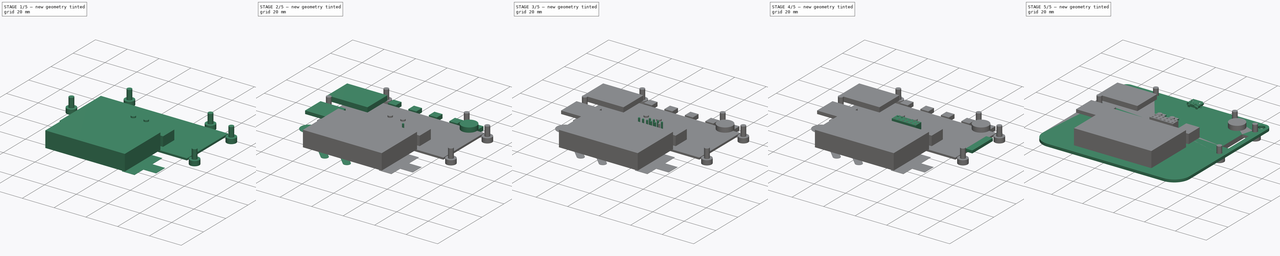
[diagram: build sequence overview — one tinted view per stage of 5, left to right]
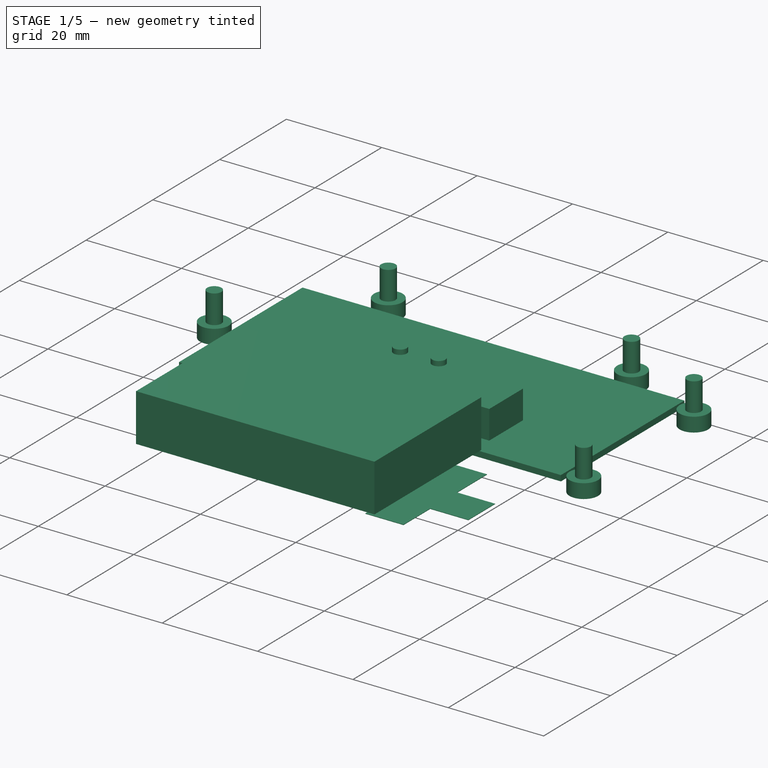
[diagram: stage 1 of 5 — iso view after this stage's code; geometry added in this stage tinted green]
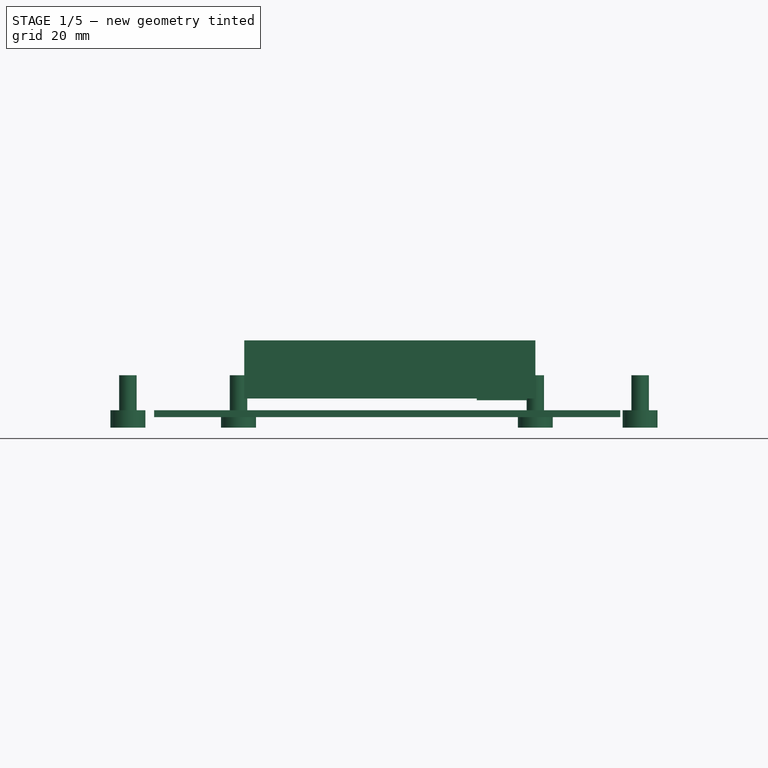
[diagram: stage 1 of 5 — front view after this stage's code; geometry added in this stage tinted green]
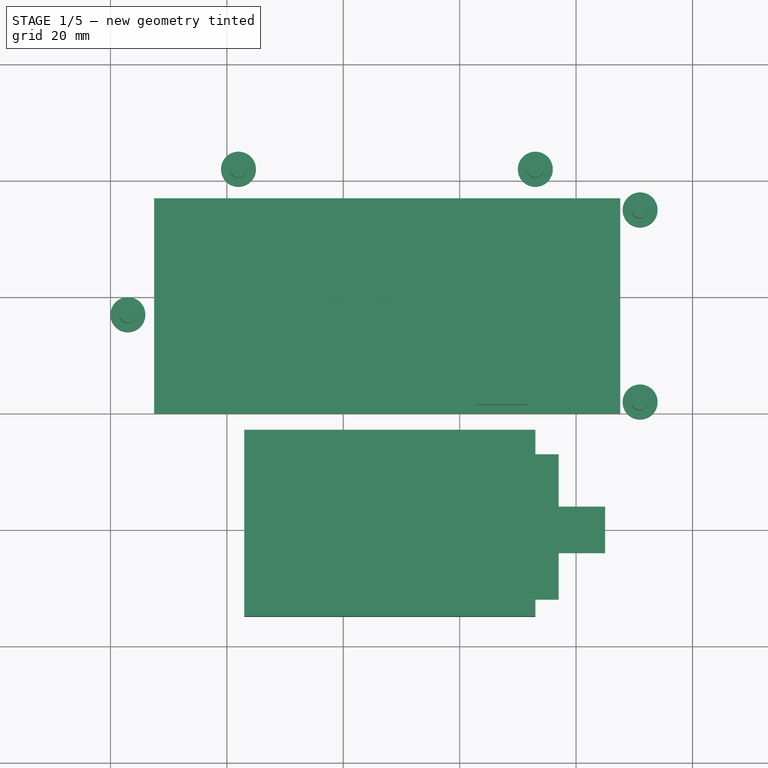
[diagram: stage 1 of 5 — top view after this stage's code; geometry added in this stage tinted green]
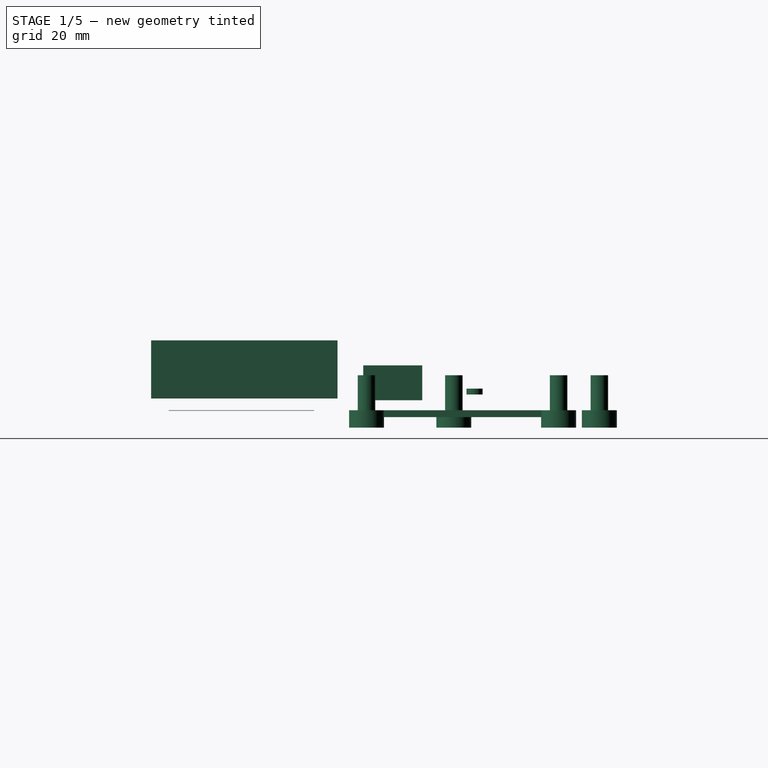
[diagram: stage 1 of 5 — right view after this stage's code; geometry added in this stage tinted green]
FCSTD DOCUMENT  (FreeCAD 0.16R6710 (Git))
Label: badgeModel
License: All rights reserved
LicenseURL: http://en.wikipedia.org/wiki/All_rights_reserved
objects: Part::Extrusion×37, Part::Feature×32, Sketcher::SketchObject×8, Part::MultiFuse×4, Part::Cut×2, Part::Compound×2, Part::FeaturePython×1, Part::Box×1
note: 87 computed .brp shape members not serialized (recipe doc carries the construction recipe); baked Part::Feature solids carry a one-line shape summary decoded from their .brp

FEATURE [Sketcher::SketchObject] Sketch004
  sketch-geometry (13):
    g0: LineSegment StartX=77 StartY=24 StartZ=0 EndX=85 EndY=24 EndZ=0
    g1: LineSegment StartX=85 StartY=24 StartZ=0 EndX=85 EndY=16 EndZ=0
    g2: LineSegment StartX=85 StartY=16 StartZ=0 EndX=77 EndY=16 EndZ=0
    g3: LineSegment StartX=77 StartY=16 StartZ=0 EndX=77 EndY=8 EndZ=0
    g4: LineSegment StartX=77 StartY=8 StartZ=0 EndX=69 EndY=8 EndZ=0
    g5: LineSegment StartX=69 StartY=8 StartZ=0 EndX=69 EndY=16 EndZ=0
    g6: LineSegment StartX=69 StartY=16 StartZ=0 EndX=61 EndY=16 EndZ=0
    g7: LineSegment StartX=61 StartY=16 StartZ=0 EndX=61 EndY=24 EndZ=0
    g8: LineSegment StartX=61 StartY=24 StartZ=0 EndX=69 EndY=24 EndZ=0
    g9: LineSegment StartX=69 StartY=24 StartZ=0 EndX=69 EndY=33 EndZ=0
    g10: LineSegment StartX=69 StartY=33 StartZ=0 EndX=77 EndY=33 EndZ=0
    g11: LineSegment StartX=77 StartY=33 StartZ=0 EndX=77 EndY=24.1 EndZ=0
    g12: LineSegment StartX=77 StartY=24 StartZ=0 EndX=77 EndY=24.1 EndZ=0
  constraints (4):
    c: DistanceX(g0) = 77
    c: DistanceY(g0) = 24
    c: Coincident(g0,g12)
    c: Coincident(g11,g12)
FEATURE [Part::Extrusion] Extrude_Sketch004  label="dpad001"
  Base = -> Sketch004
  Dir = (0,0,-0.1)
  Solid = true
FEATURE [Part::Extrusion] Extrude_Wire002  label="batConOutline_Extrude"
  Base = -> Wire002
  Dir = (0,0,6)
  Solid = true
FEATURE [Part::Extrusion] Extrude_Wire005  label="lcd_Extrude"
  Base = -> Wire005
  Dir = (0,0,-1.2)
  Solid = true
FEATURE [Part::Extrusion] Extrude_Sketch  label="Buttons_Extrude"
  Base = -> Sketch
  Dir = (0,0,1)
  Solid = true
FEATURE [Sketcher::SketchObject] Sketch005
  ExternalGeometry = -> [Extrude_Sketch]
  Placement = pos=(0,0,2.7) rot=(0,0,1;0rad)
  Support = -> Extrude_Sketch [Face6]
  sketch-geometry (7):
    g0: Circle CenterX=39.4787 CenterY=60.5688 CenterZ=0 NormalX=0 NormalY=0 NormalZ=1 Radius=1.38631
    g1: Circle CenterX=47.5742 CenterY=60.5688 CenterZ=0 NormalX=0 NormalY=0 NormalZ=1 Radius=1.38631
    g2: LineSegment [constr] StartX=42.0765 StartY=63.1395 StartZ=0 EndX=39.4787 EndY=60.5688 EndZ=0
    g3: LineSegment [constr] StartX=39.4787 StartY=60.5688 StartZ=0 EndX=36.8809 EndY=57.9981 EndZ=0
    g4: LineSegment [constr] StartX=39.4787 StartY=60.5688 StartZ=0 EndX=36.8809 EndY=63.1395 EndZ=0
    g5: LineSegment [constr] StartX=44.9764 StartY=63.1395 StartZ=0 EndX=47.5742 EndY=60.5688 EndZ=0
    g6: LineSegment [constr] StartX=47.5742 StartY=60.5688 StartZ=0 EndX=50.172 EndY=63.1395 EndZ=0
  constraints (15):
    c: Coincident(g2,g-4)
    c: Coincident(g3,g0)
    c: Coincident(g3,g-5)
    c: Coincident(g4,g0)
    c: Coincident(g4,g-4)
    c: Coincident(g5,g-3)
    c: Coincident(g5,g1)
    c: Coincident(g6,g1)
    c: Coincident(g6,g-3)
    c: Equal(g6,g5)
    c: Equal(g5,g2)
    c: Equal(g2,g4)
    c: Equal(g4,g3)
    c: Coincident(g0,g2)
    c: Equal(g0,g1)
FEATURE [Part::Extrusion] Extrude_Sketch005  label="Sketch005_Extrude"
  Base = -> Sketch005
  Dir = (0,0,1)
  Solid = true
FEATURE [Part::Box] Box  label="Battery"
  Height = 10
  Length = 50
  Placement = pos=(23,5,2) rot=(0,0,1;0rad)
  Width = 32
FEATURE [Sketcher::SketchObject] Sketch010
  Placement = pos=(0,0,0) rot=(1,0,0;3.14159rad)
  sketch-geometry (5):
    g0: Circle CenterX=3 CenterY=-57 CenterZ=0 NormalX=0 NormalY=0 NormalZ=1 Radius=3
    g1: Circle CenterX=91 CenterY=-42 CenterZ=0 NormalX=0 NormalY=0 NormalZ=1 Radius=3
    g2: Circle CenterX=91 CenterY=-75 CenterZ=0 NormalX=0 NormalY=0 NormalZ=1 Radius=3
    g3: Circle CenterX=73 CenterY=-82 CenterZ=0 NormalX=0 NormalY=0 NormalZ=1 Radius=3
    g4: Circle CenterX=22 CenterY=-82 CenterZ=0 NormalX=0 NormalY=0 NormalZ=1 Radius=3
  constraints (2):
    c: Radius(g4) = 3
    c: Equal(g4, g0-g3) x4
FEATURE [Part::Extrusion] Extrude_Sketch010  label="Sketch010_Extrude"
  Base = -> Sketch010
  Dir = (0,0,-3)
  Solid = true
FEATURE [Sketcher::SketchObject] Sketch011
  ExternalGeometry = -> [Extrude_Sketch010]
  Support = -> Extrude_Sketch010 [Face2]
  sketch-geometry (5):
    g0: Circle CenterX=3 CenterY=57 CenterZ=0 NormalX=0 NormalY=0 NormalZ=1 Radius=1.5
    g1: Circle CenterX=22 CenterY=82 CenterZ=0 NormalX=0 NormalY=0 NormalZ=1 Radius=1.5
    g2: Circle CenterX=73 CenterY=82 CenterZ=0 NormalX=0 NormalY=0 NormalZ=1 Radius=1.5
    g3: Circle CenterX=91 CenterY=75 CenterZ=0 NormalX=0 NormalY=0 NormalZ=1 Radius=1.5
    g4: Circle CenterX=91 CenterY=42 CenterZ=0 NormalX=0 NormalY=0 NormalZ=1 Radius=1.5
  constraints (7):
    c: Coincident(g0,g-4)
    c: Coincident(g1,g-3)
    c: Coincident(g2,g-5)
    c: Coincident(g3,g-6)
    c: Coincident(g4,g-7)
    c: Radius(g0) = 1.5
    c: Equal(g0, g1-g4) x4
FEATURE [Part::Extrusion] Extrude_Sketch011  label="Sketch011_Extrude"
  Base = -> Sketch011
  Dir = (0,0,6)
  Solid = true
FEATURE [Part::MultiFuse] Fusion001003  label="M3-6mmScrews"
  Shapes = -> [Extrude_Sketch010,Extrude_Sketch011]
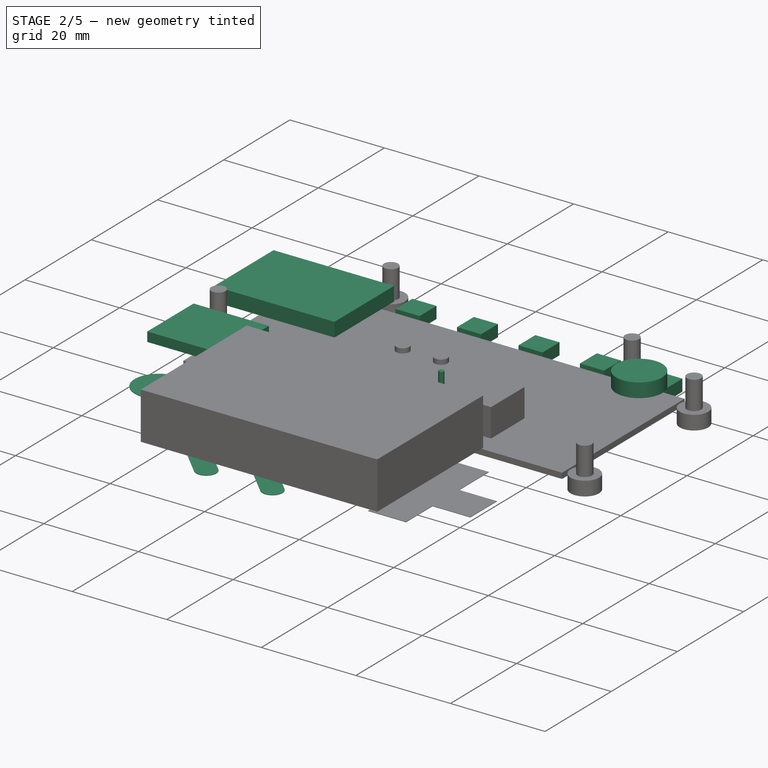
[diagram: stage 2 of 5 — iso view after this stage's code; geometry added in this stage tinted green]
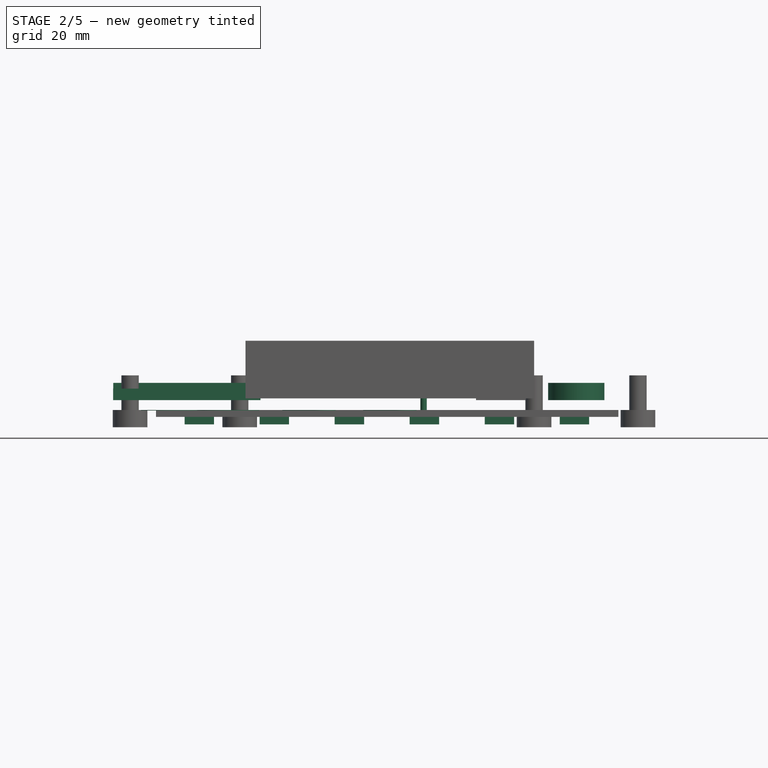
[diagram: stage 2 of 5 — front view after this stage's code; geometry added in this stage tinted green]
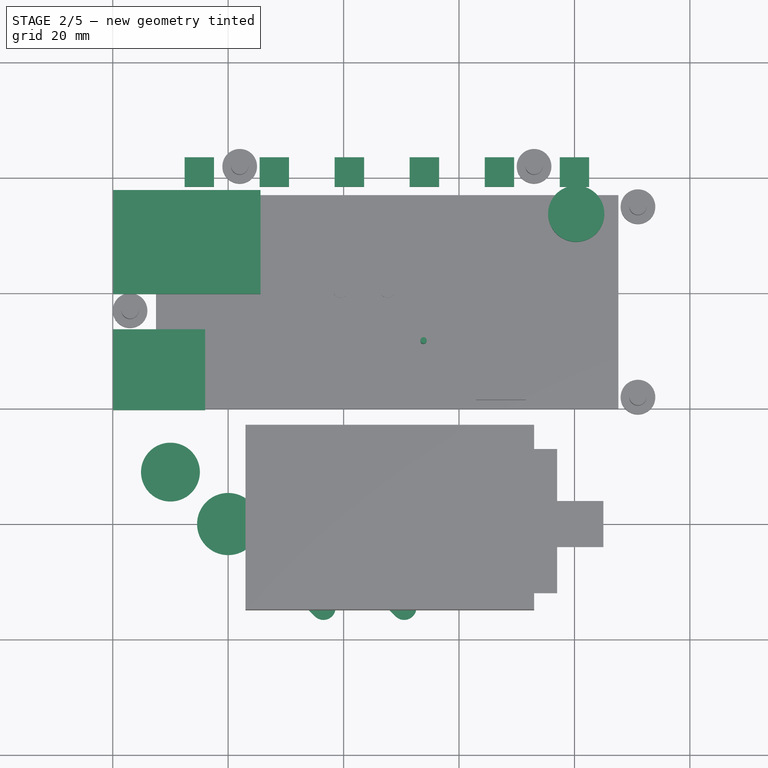
[diagram: stage 2 of 5 — top view after this stage's code; geometry added in this stage tinted green]
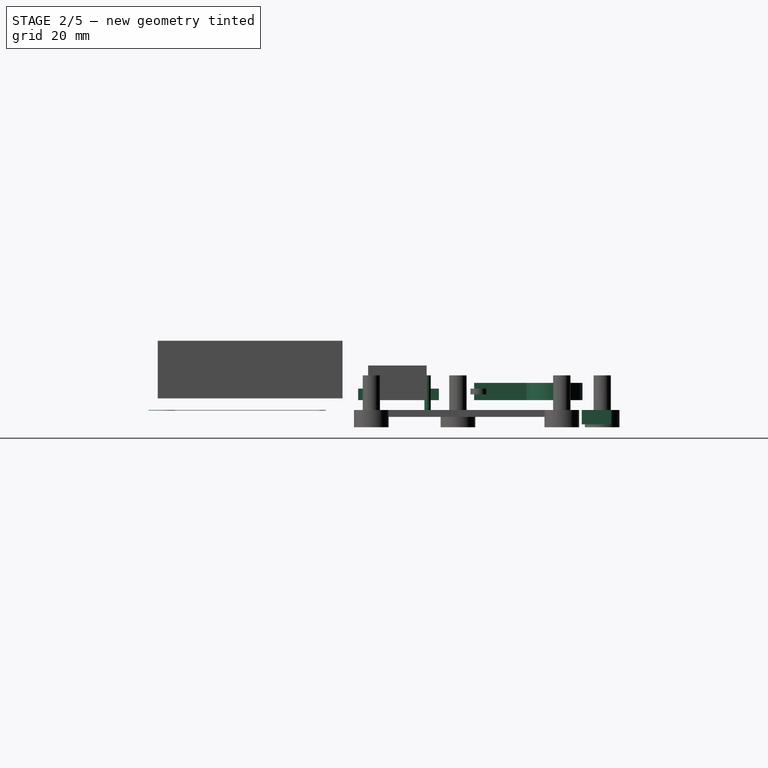
[diagram: stage 2 of 5 — right view after this stage's code; geometry added in this stage tinted green]
FEATURE [Part::Extrusion] Extrude_Circle018  label="Circle018_Extrude"
  Base = -> Circle018
  Dir = (0,0,6)
  Solid = true
FEATURE [Part::Extrusion] Extrude_Sketch002  label="sdouline_Extrude"
  Base = -> Sketch002
  Dir = (0,0,2)
  Solid = true
FEATURE [Part::Extrusion] Extrude_Wire003  label="ESP32Outline_Extrude"
  Base = -> Wire003
  Dir = (0,0,3)
  Solid = true
FEATURE [Part::Extrusion] Extrude_Polyline1548  label="VibratorOutline_Extrude"
  Base = -> Polyline1548
  Dir = (0,0,3)
  Solid = true
FEATURE [Part::Extrusion] Extrude_Sketch003  label="ledsOutline_Extrude"
  Base = -> Sketch003
  Dir = (0,0,-2.5)
  Solid = true
FEATURE [Part::Extrusion] Extrude_Wire006  label="Start_Extrude"
  Base = -> Wire006
  Dir = (0,0,-0.1)
  Solid = true
FEATURE [Part::Extrusion] Extrude_Wire007  label="Select_Extrude"
  Base = -> Wire007
  Dir = (0,0,-0.1)
  Solid = true
FEATURE [Part::Extrusion] Extrude_Circle019  label="abtn_Extrude"
  Base = -> Circle019
  Dir = (0,0,-0.1)
  Solid = true
FEATURE [Part::Extrusion] Extrude_Circle020  label="bbtn_Extrude"
  Base = -> Circle020
  Dir = (0,0,-0.1)
  Solid = true
FEATURE [Part::Compound] Compound  label="CapButtons"
  Links = -> [Extrude_Sketch004,Extrude_Wire006,Extrude_Circle019,Extrude_Wire007,Extrude_Circle020,Fusion001001]
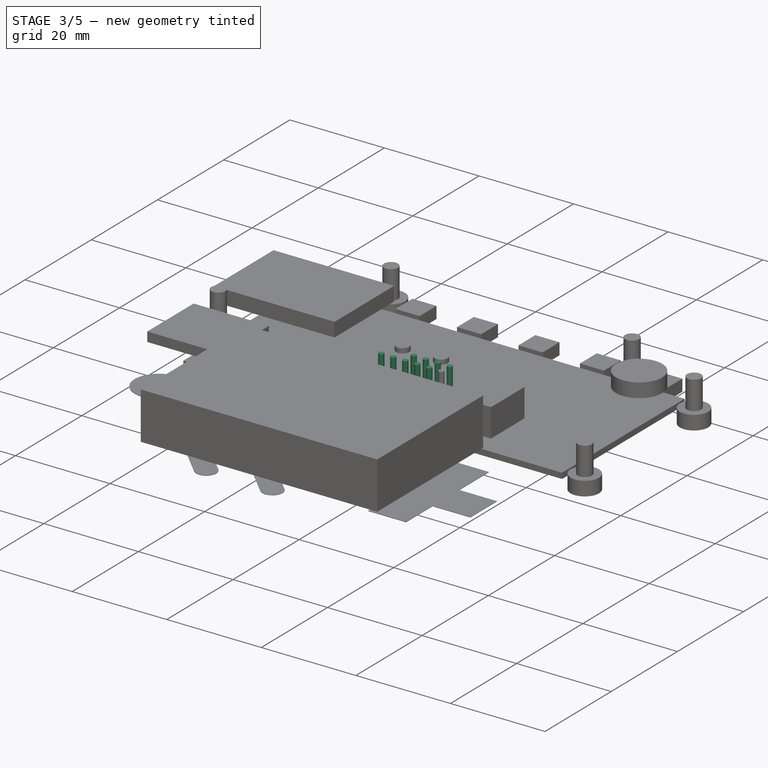
[diagram: stage 3 of 5 — iso view after this stage's code; geometry added in this stage tinted green]
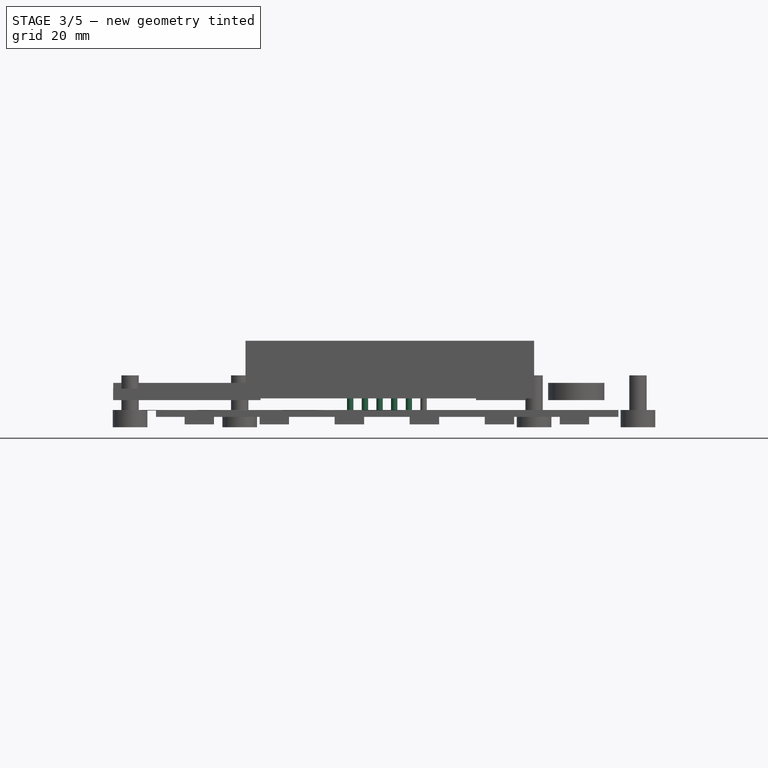
[diagram: stage 3 of 5 — front view after this stage's code; geometry added in this stage tinted green]
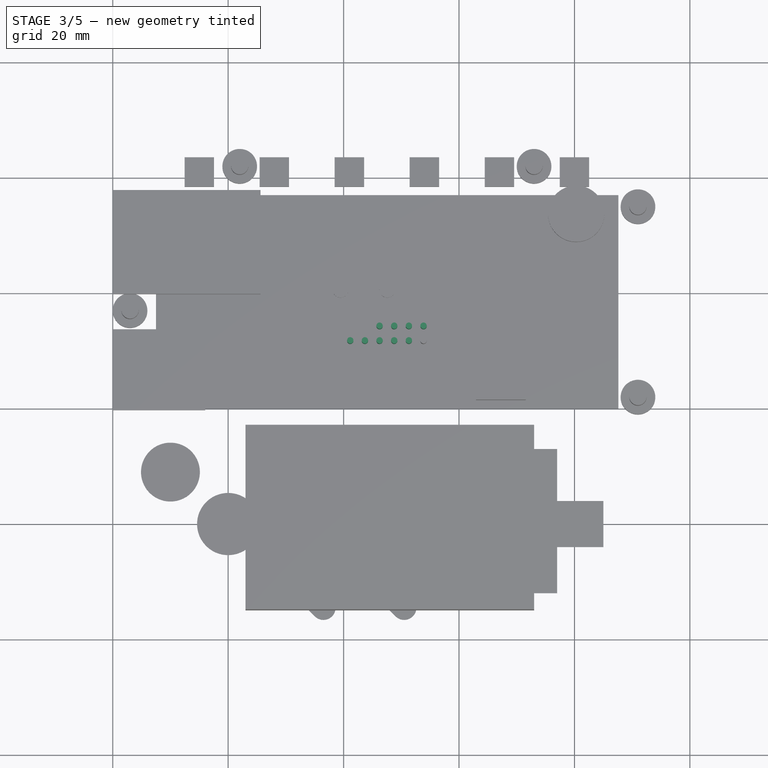
[diagram: stage 3 of 5 — top view after this stage's code; geometry added in this stage tinted green]
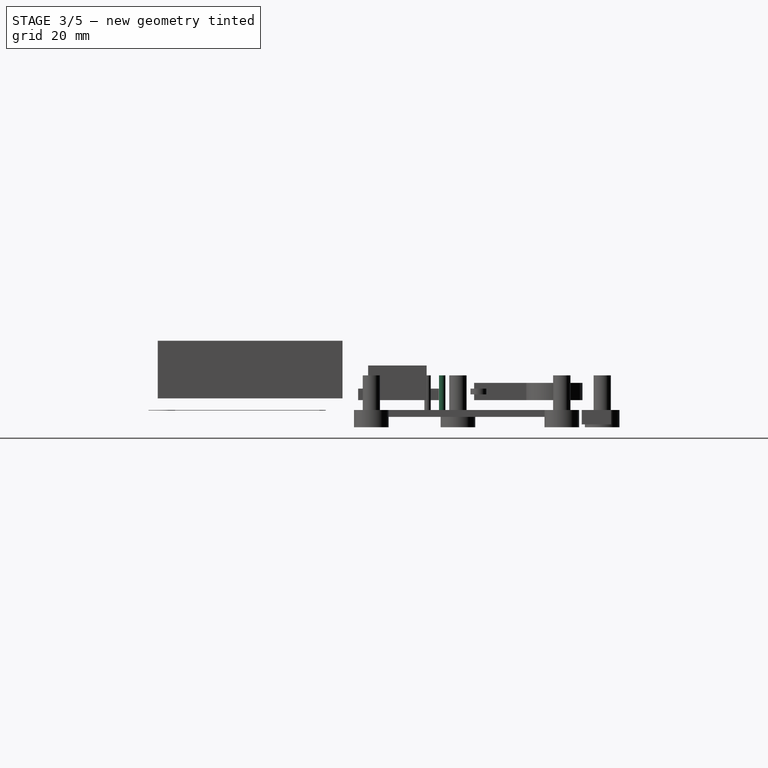
[diagram: stage 3 of 5 — right view after this stage's code; geometry added in this stage tinted green]
FEATURE [Part::Extrusion] Extrude_Circle009  label="Circle009_Extrude"
  Base = -> Circle009
  Dir = (0,0,6)
  Solid = true
FEATURE [Part::Extrusion] Extrude_Circle010  label="Circle010_Extrude"
  Base = -> Circle010
  Dir = (0,0,6)
  Solid = true
FEATURE [Part::Extrusion] Extrude_Circle011  label="Circle011_Extrude"
  Base = -> Circle011
  Dir = (0,0,6)
  Solid = true
FEATURE [Part::Extrusion] Extrude_Circle012  label="Circle012_Extrude"
  Base = -> Circle012
  Dir = (0,0,6)
  Solid = true
FEATURE [Part::Extrusion] Extrude_Circle013  label="Circle013_Extrude"
  Base = -> Circle013
  Dir = (0,0,6)
  Solid = true
FEATURE [Part::Extrusion] Extrude_Circle014  label="Circle014_Extrude"
  Base = -> Circle014
  Dir = (0,0,6)
  Solid = true
FEATURE [Part::Extrusion] Extrude_Circle015  label="Circle015_Extrude"
  Base = -> Circle015
  Dir = (0,0,6)
  Solid = true
FEATURE [Part::Extrusion] Extrude_Circle016  label="Circle016_Extrude"
  Base = -> Circle016
  Dir = (0,0,6)
  Solid = true
FEATURE [Part::Extrusion] Extrude_Circle017  label="Circle017_Extrude"
  Base = -> Circle017
  Dir = (0,0,6)
  Solid = true
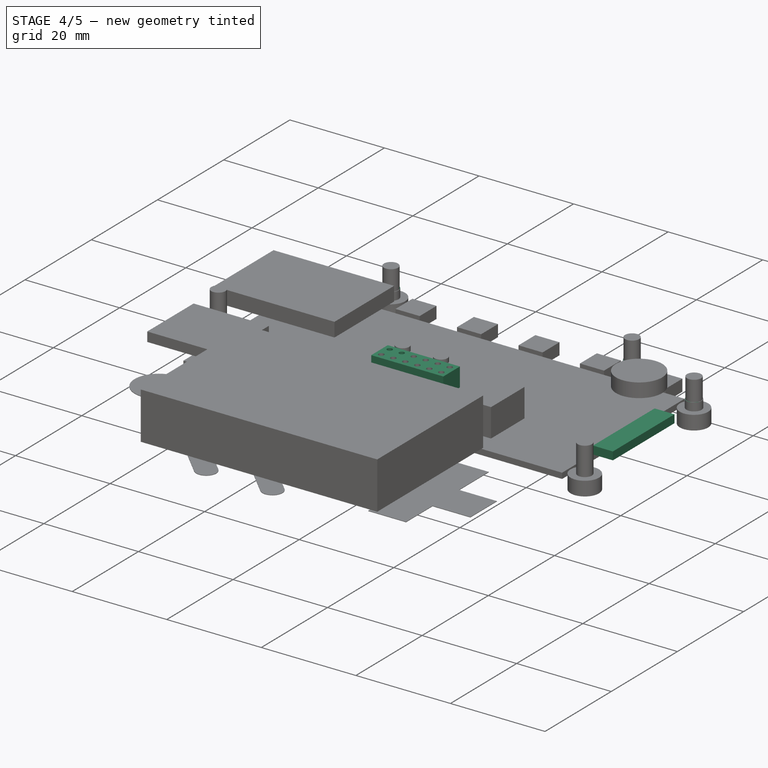
[diagram: stage 4 of 5 — iso view after this stage's code; geometry added in this stage tinted green]
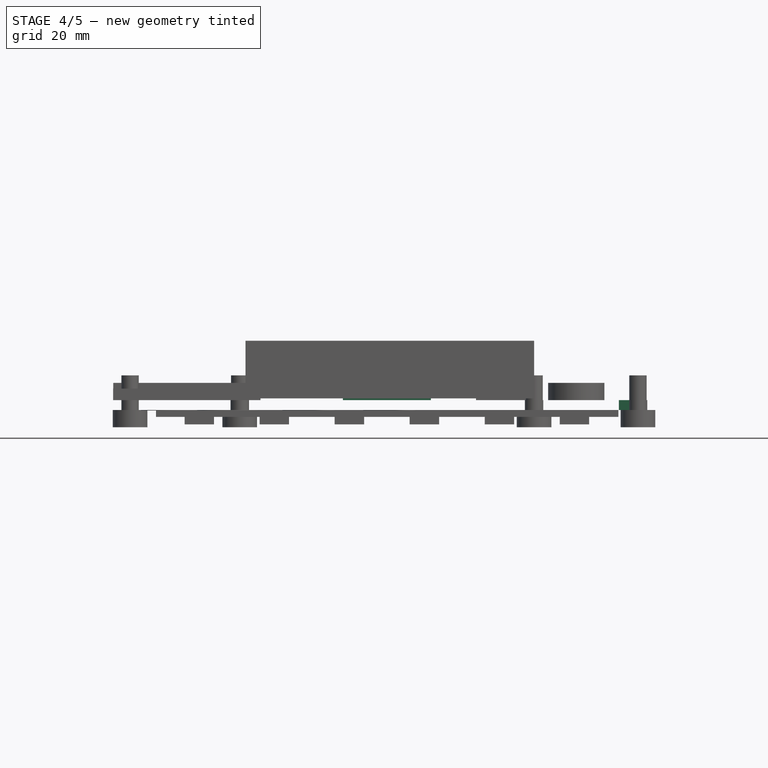
[diagram: stage 4 of 5 — front view after this stage's code; geometry added in this stage tinted green]
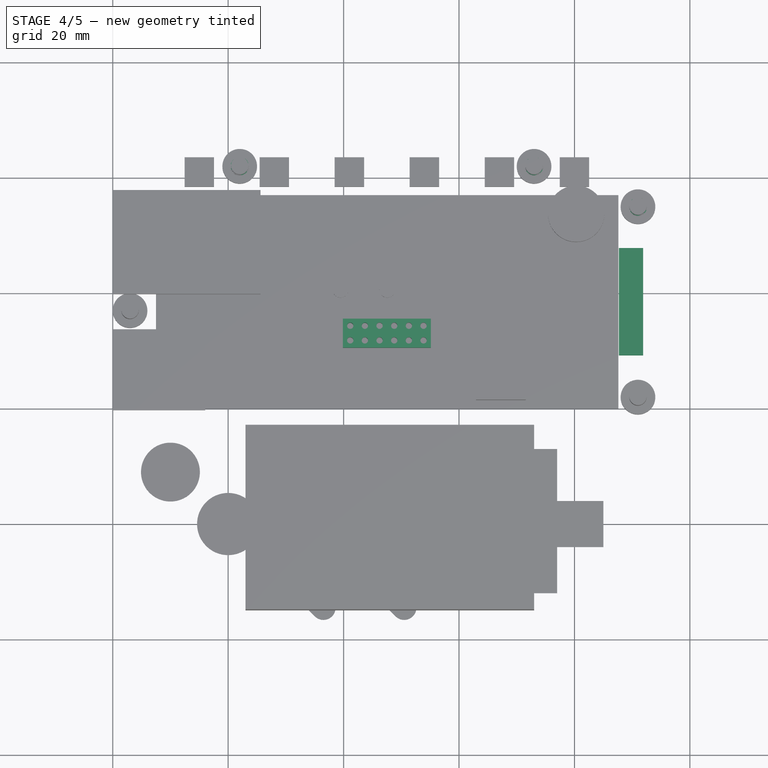
[diagram: stage 4 of 5 — top view after this stage's code; geometry added in this stage tinted green]
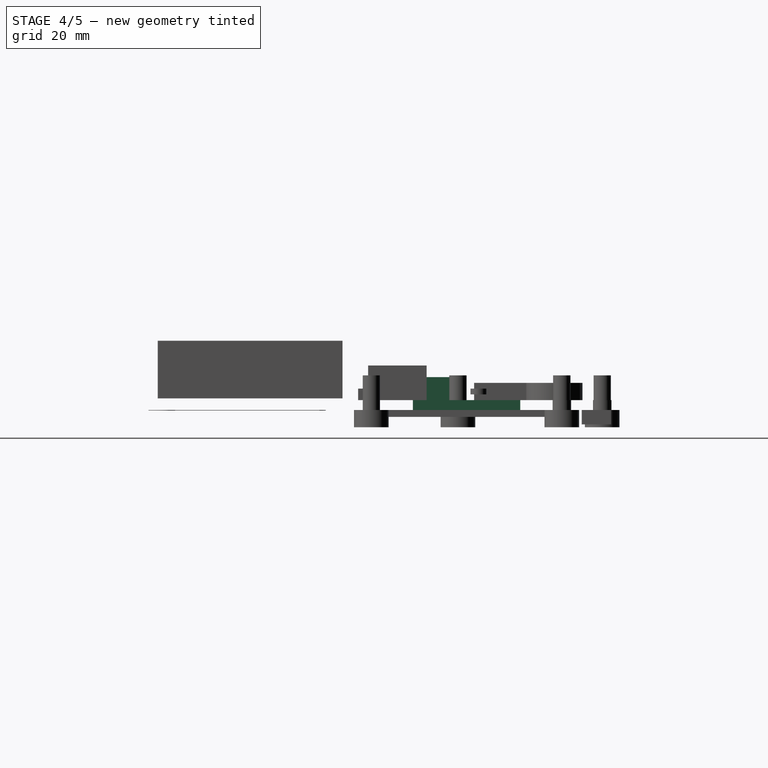
[diagram: stage 4 of 5 — right view after this stage's code; geometry added in this stage tinted green]
FEATURE [Part::Extrusion] Extrude_Circle004  label="Circle004_Extrude"
  Base = -> Circle004
  Dir = (0,0,1.7)
  Solid = true
FEATURE [Part::Extrusion] Extrude_Circle005  label="Circle005_Extrude"
  Base = -> Circle005
  Dir = (0,0,1.7)
  Solid = true
FEATURE [Part::Extrusion] Extrude_Circle006  label="Circle006_Extrude"
  Base = -> Circle006
  Dir = (0,0,1.7)
  Solid = true
FEATURE [Part::Extrusion] Extrude_Circle007  label="Circle007_Extrude"
  Base = -> Circle007
  Dir = (0,0,6)
  Solid = true
FEATURE [Part::Extrusion] Extrude_Circle008  label="Circle008_Extrude"
  Base = -> Circle008
  Dir = (0,0,6)
  Solid = true
FEATURE [Part::MultiFuse] Fusion001  label="AuxConn"
  Shapes = -> [Extrude_Circle007,Extrude_Circle015,Extrude_Circle010,Extrude_Circle012,Extrude_Circle013,Extrude_Circle017,Extrude_Circle018,Extrude_Circle008,Extrude_Circle011,Extrude_Circle009,Extrude_Circle016,Extrude_Circle014]
FEATURE [Part::Feature] Wire
  shape: bbox 4.2 x 18.6 x 2e-07 mm, 0 faces, 0 solids (baked)
FEATURE [Part::Extrusion] Extrude_Wire  label="lcdWires"
  Base = -> Wire
  Dir = (0,0,1.7)
  Solid = true
FEATURE [Part::Extrusion] Extrude_Sketch001  label="auxConnAoutline_Extrude"
  Base = -> Sketch001
  Dir = (0,0,4)
  Solid = true
FEATURE [Part::FeaturePython] Clone  label="Clone of AuxConn"  # Draft clone (typed FeaturePython)
  Objects = -> [Fusion001]
  Scale = (1,1,1)
FEATURE [Part::Cut] Cut001  label="AuxConnector"
  Base = -> Extrude_Sketch001
  Tool = -> Clone
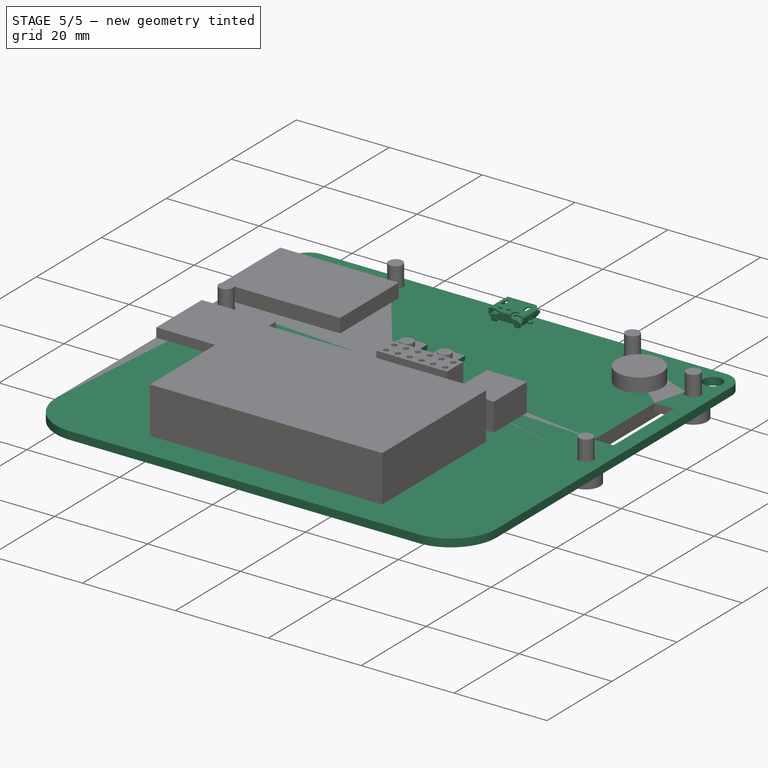
[diagram: stage 5 of 5 — iso view after this stage's code; geometry added in this stage tinted green]
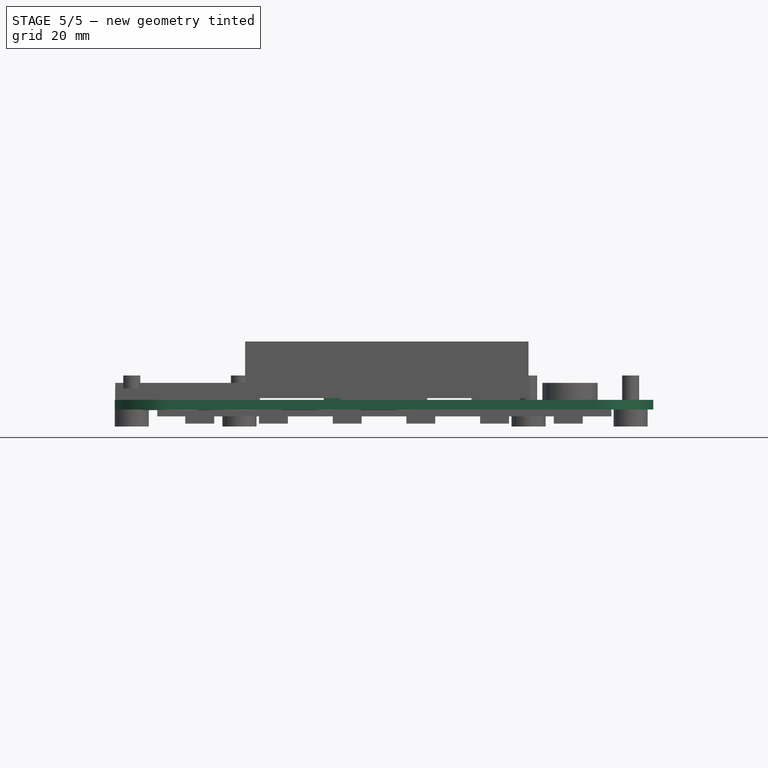
[diagram: stage 5 of 5 — front view after this stage's code; geometry added in this stage tinted green]
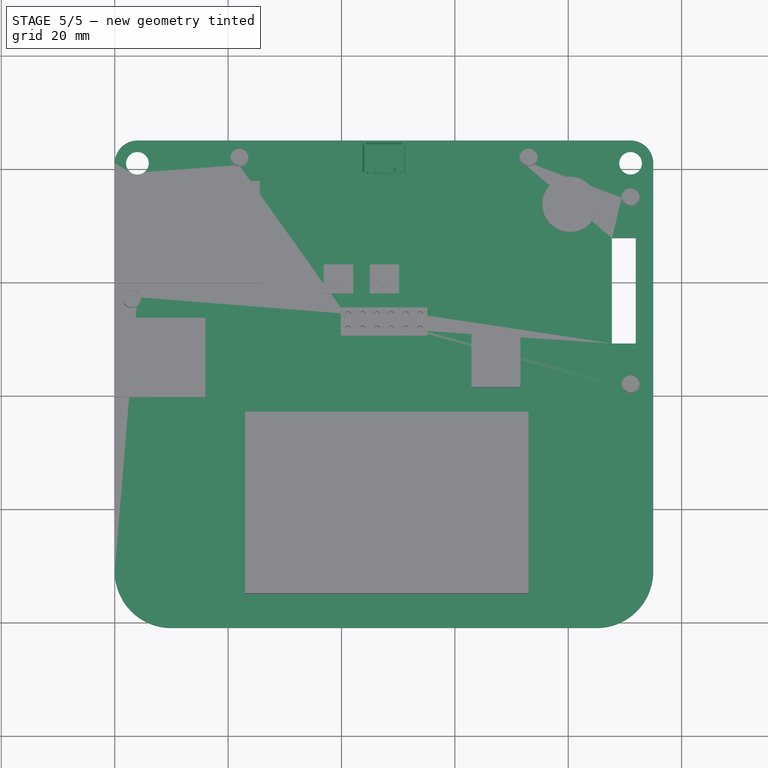
[diagram: stage 5 of 5 — top view after this stage's code; geometry added in this stage tinted green]
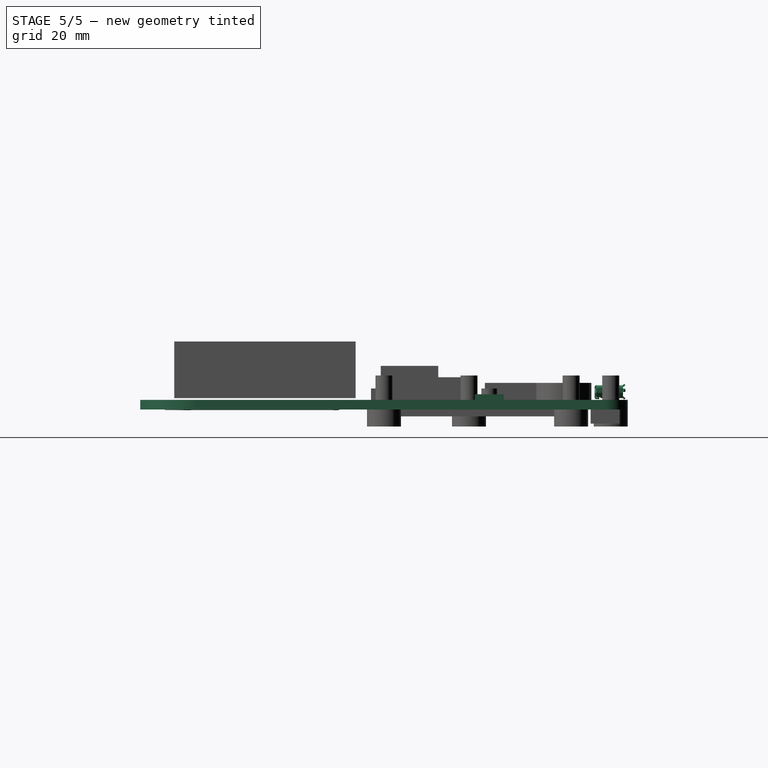
[diagram: stage 5 of 5 — right view after this stage's code; geometry added in this stage tinted green]
FEATURE [Part::Feature] Circle
  shape: bbox 4 x 4 x 2e-07 mm, 0 faces, 0 solids (baked)
FEATURE [Part::Feature] Circle001
  shape: bbox 4 x 4 x 2e-07 mm, 0 faces, 0 solids (baked)
FEATURE [Part::Feature] Circle002 .. Circle006  x5 (patterned run collapsed; names and placements below)
  shape: bbox 3.2 x 3.2 x 2e-07 mm, 0 faces, 0 solids (baked)
FEATURE [Part::Feature] Circle007 .. Circle018  x12 (patterned run collapsed; names and placements below)
  shape: bbox 1.1 x 1.1 x 2e-07 mm, 0 faces, 0 solids (baked)
FEATURE [Part::Feature] Face
  shape: bbox 95 x 86 x 2e-07 mm, 1 faces, 0 solids (baked)
FEATURE [Part::Extrusion] Extrude_Face  label="pcbOutline"
  Base = -> Face
  Dir = (0,0,1.7)
  Solid = true
FEATURE [Part::Extrusion] Extrude_Circle  label="Circle_Extrude"
  Base = -> Circle
  Dir = (0,0,1.7)
  Solid = true
FEATURE [Part::Extrusion] Extrude_Circle001  label="Circle001_Extrude"
  Base = -> Circle001
  Dir = (0,0,1.7)
  Solid = true
FEATURE [Part::Extrusion] Extrude_Circle002  label="Circle002_Extrude"
  Base = -> Circle002
  Dir = (0,0,1.7)
  Solid = true
FEATURE [Part::Extrusion] Extrude_Circle003  label="Circle003_Extrude"
  Base = -> Circle003
  Dir = (0,0,1.7)
  Solid = true
FEATURE [Part::MultiFuse] Fusion  label="Holes"
  Shapes = -> [Extrude_Circle,Extrude_Circle002,Extrude_Circle001,Extrude_Circle005,Extrude_Circle003,Extrude_Circle004,Extrude_Circle006]
FEATURE [Part::Feature] Wire001  label="BatteryArea"
  Placement = pos=(0,0,1.7) rot=(0,0,1;0rad)
  shape: bbox 58.5 x 39.7 x 2e-07 mm, 0 faces, 0 solids (baked)
FEATURE [Part::Feature] Wire002  label="batConOutline"
  Placement = pos=(0,0,1.7) rot=(0,0,1;0rad)
  shape: bbox 8.636 x 10.13 x 2e-07 mm, 0 faces, 0 solids (baked)
FEATURE [Part::Feature] Wire003  label="ESP32Outline"
  Placement = pos=(0,0,1.7) rot=(0,0,1;0rad)
  shape: bbox 25.5 x 18 x 2e-07 mm, 0 faces, 0 solids (baked)
FEATURE [Part::Feature] Polyline1548  label="VibratorOutline"
  Placement = pos=(0,0,1.7) rot=(0,0,1;0rad)
  shape: bbox 9.751 x 9.751 x 2e-07 mm, 0 faces, 0 solids (baked)
FEATURE [Sketcher::SketchObject] Sketch  label="Buttons"
  Placement = pos=(0,0,1.7) rot=(0,0,1;0rad)
  sketch-geometry (9):
    g0: LineSegment StartX=42.0765 StartY=63.1395 StartZ=0 EndX=36.8809 EndY=63.1395 EndZ=0
    g1: LineSegment StartX=36.8809 StartY=63.1395 StartZ=0 EndX=36.8809 EndY=57.9981 EndZ=0
    g2: LineSegment StartX=36.8809 StartY=57.9981 StartZ=0 EndX=42.0765 EndY=57.9981 EndZ=0
    g3: LineSegment StartX=42.0765 StartY=57.9981 StartZ=0 EndX=42.0765 EndY=63.1395 EndZ=0
    g4: LineSegment StartX=44.9764 StartY=63.1395 StartZ=0 EndX=50.172 EndY=63.1395 EndZ=0
    g5: LineSegment StartX=50.172 StartY=63.1395 StartZ=0 EndX=50.172 EndY=57.9981 EndZ=0
    g6: LineSegment StartX=50.172 StartY=57.9981 StartZ=0 EndX=44.9764 EndY=57.9981 EndZ=0
    g7: LineSegment StartX=44.9764 StartY=57.9981 StartZ=0 EndX=44.9764 EndY=63.1395 EndZ=0
    g8: LineSegment [constr] StartX=42.0765 StartY=63.1395 StartZ=0 EndX=44.9764 EndY=63.1395 EndZ=0
  constraints (21):
    c: Coincident(g0,g1)
    c: Coincident(g1,g2)
    c: Coincident(g2,g3)
    c: Coincident(g3,g0)
    c: Horizontal(g0)
    c: Horizontal(g2)
    c: Vertical(g1)
    c: Vertical(g3)
    c: Coincident(g4,g5)
    c: Coincident(g5,g6)
    c: Coincident(g6,g7)
    c: Coincident(g7,g4)
    c: Horizontal(g4)
    c: Horizontal(g6)
    c: Vertical(g5)
    c: Vertical(g7)
    c: Equal(g0,g4)
    c: Equal(g3,g7)
    c: Coincident(g4,g8)
    c: Coincident(g0,g8)
    c: Horizontal(g8)
FEATURE [Sketcher::SketchObject] Sketch001  label="auxConnAoutline"
  Placement = pos=(0,0,1.7) rot=(1,0,0;3.14159rad)
  sketch-geometry (7):
    g0: LineSegment StartX=55.125 StartY=-50.5 StartZ=0 EndX=39.875 EndY=-50.5 EndZ=0
    g1: LineSegment StartX=39.875 StartY=-50.5 StartZ=0 EndX=39.875 EndY=-55.5 EndZ=0
    g2: LineSegment StartX=39.875 StartY=-55.5 StartZ=0 EndX=55.125 EndY=-55.5 EndZ=0
    g3: LineSegment StartX=55.125 StartY=-55.5 StartZ=0 EndX=55.125 EndY=-50.5 EndZ=0
    g4: LineSegment [constr] StartX=41.15 StartY=-51.73 StartZ=0 EndX=39.875 EndY=-50.5 EndZ=0
    g5: LineSegment [constr] StartX=41.15 StartY=-54.27 StartZ=0 EndX=39.875 EndY=-55.5 EndZ=0
    g6: LineSegment [constr] StartX=53.85 StartY=-51.73 StartZ=0 EndX=55.125 EndY=-50.5 EndZ=0
  constraints (15):
    c: Coincident(g0,g1)
    c: Coincident(g1,g2)
    c: Coincident(g2,g3)
    c: Coincident(g3,g0)
    c: Horizontal(g0)
    c: Horizontal(g2)
    c: Vertical(g1)
    c: Vertical(g3)
    c: Coincident(g4,g0)
    c: Coincident(g5,g1)
    c: Coincident(g6,g0)
    c: Equal(g6,g4)
    c: Equal(g4,g5)
    c: Distance(g0) = 15.25
    c: Distance(g3) = 5
FEATURE [Sketcher::SketchObject] Sketch002  label="sdouline"
  Placement = pos=(0,0,1.7) rot=(0,0,1;0rad)
  sketch-geometry (4):
    g0: LineSegment StartX=16.0011 StartY=53.7008 StartZ=0 EndX=0.063418 EndY=53.7008 EndZ=0
    g1: LineSegment StartX=0.063418 StartY=53.7008 StartZ=0 EndX=0.063418 EndY=39.6988 EndZ=0
    g2: LineSegment StartX=0.063418 StartY=39.6988 StartZ=0 EndX=16.0011 EndY=39.6988 EndZ=0
    g3: LineSegment StartX=16.0011 StartY=39.6988 StartZ=0 EndX=16.0011 EndY=53.7008 EndZ=0
  constraints (8):
    c: Coincident(g0,g1)
    c: Coincident(g1,g2)
    c: Coincident(g2,g3)
    c: Coincident(g3,g0)
    c: Horizontal(g0)
    c: Horizontal(g2)
    c: Vertical(g1)
    c: Vertical(g3)
FEATURE [Part::Feature] Wire005  label="lcd"
  shape: bbox 80.1 x 37 x 2e-07 mm, 0 faces, 0 solids (baked)
FEATURE [Part::Feature] Wire006  label="Start"
  shape: bbox 9.243 x 9.243 x 2e-07 mm, 0 faces, 0 solids (baked)
FEATURE [Part::Feature] Wire007  label="Select"
  shape: bbox 9.243 x 9.243 x 2e-07 mm, 0 faces, 0 solids (baked)
FEATURE [Part::Feature] Circle019  label="abtn"
  shape: bbox 10.2 x 10.2 x 2e-07 mm, 0 faces, 0 solids (baked)
FEATURE [Part::Feature] Circle020  label="bbtn"
  shape: bbox 10.77 x 10.77 x 2e-07 mm, 0 faces, 0 solids (baked)
FEATURE [Sketcher::SketchObject] Sketch003  label="ledsOutline"
  sketch-geometry (29):
    g0: LineSegment StartX=12.45 StartY=83.55 StartZ=0 EndX=17.55 EndY=83.55 EndZ=0
    g1: LineSegment StartX=17.55 StartY=83.55 StartZ=0 EndX=17.55 EndY=78.45 EndZ=0
    g2: LineSegment StartX=17.55 StartY=78.45 StartZ=0 EndX=12.45 EndY=78.45 EndZ=0
    g3: LineSegment StartX=12.45 StartY=78.45 StartZ=0 EndX=12.45 EndY=83.55 EndZ=0
    g4: LineSegment StartX=25.45 StartY=83.55 StartZ=0 EndX=30.55 EndY=83.55 EndZ=0
    g5: LineSegment StartX=30.55 StartY=83.55 StartZ=0 EndX=30.55 EndY=78.45 EndZ=0
    g6: LineSegment StartX=30.55 StartY=78.45 StartZ=0 EndX=25.45 EndY=78.45 EndZ=0
    g7: LineSegment StartX=25.45 StartY=78.45 StartZ=0 EndX=25.45 EndY=83.55 EndZ=0
    g8: LineSegment StartX=38.45 StartY=83.55 StartZ=0 EndX=43.55 EndY=83.55 EndZ=0
    g9: LineSegment StartX=43.55 StartY=83.55 StartZ=0 EndX=43.55 EndY=78.45 EndZ=0
    g10: LineSegment StartX=43.55 StartY=78.45 StartZ=0 EndX=38.45 EndY=78.45 EndZ=0
    g11: LineSegment StartX=38.45 StartY=78.45 StartZ=0 EndX=38.45 EndY=83.55 EndZ=0
    g12: LineSegment StartX=51.45 StartY=83.55 StartZ=0 EndX=56.55 EndY=83.55 EndZ=0
    g13: LineSegment StartX=56.55 StartY=83.55 StartZ=0 EndX=56.55 EndY=78.45 EndZ=0
    g14: LineSegment StartX=56.55 StartY=78.45 StartZ=0 EndX=51.45 EndY=78.45 EndZ=0
    g15: LineSegment StartX=51.45 StartY=78.45 StartZ=0 EndX=51.45 EndY=83.55 EndZ=0
    g16: LineSegment StartX=64.45 StartY=83.55 StartZ=0 EndX=69.55 EndY=83.55 EndZ=0
    g17: LineSegment StartX=69.55 StartY=83.55 StartZ=0 EndX=69.55 EndY=78.45 EndZ=0
    g18: LineSegment StartX=69.55 StartY=78.45 StartZ=0 EndX=64.45 EndY=78.45 EndZ=0
    g19: LineSegment StartX=64.45 StartY=78.45 StartZ=0 EndX=64.45 EndY=83.55 EndZ=0
    g20: LineSegment StartX=77.45 StartY=83.55 StartZ=0 EndX=82.55 EndY=83.55 EndZ=0
    g21: LineSegment StartX=82.55 StartY=83.55 StartZ=0 EndX=82.55 EndY=78.45 EndZ=0
    g22: LineSegment StartX=82.55 StartY=78.45 StartZ=0 EndX=77.45 EndY=78.45 EndZ=0
    g23: LineSegment StartX=77.45 StartY=78.45 StartZ=0 EndX=77.45 EndY=83.55 EndZ=0
    g24: LineSegment [constr] StartX=77.45 StartY=83.55 StartZ=0 EndX=69.55 EndY=83.55 EndZ=0
    g25: LineSegment [constr] StartX=64.45 StartY=83.55 StartZ=0 EndX=56.55 EndY=83.55 EndZ=0
    g26: LineSegment [constr] StartX=51.45 StartY=83.55 StartZ=0 EndX=43.55 EndY=83.55 EndZ=0
    g27: LineSegment [constr] StartX=38.45 StartY=83.55 StartZ=0 EndX=30.55 EndY=83.55 EndZ=0
    g28: LineSegment [constr] StartX=25.45 StartY=83.55 StartZ=0 EndX=17.55 EndY=83.55 EndZ=0
  constraints (82):
    c: Coincident(g0,g1)
    c: Coincident(g1,g2)
    c: Coincident(g2,g3)
    c: Coincident(g3,g0)
    c: Horizontal(g0)
    c: Horizontal(g2)
    c: Vertical(g1)
    c: Vertical(g3)
    c: Coincident(g4,g5)
    c: Coincident(g5,g6)
    c: Coincident(g6,g7)
    c: Coincident(g7,g4)
    c: Horizontal(g4)
    c: Horizontal(g6)
    c: Vertical(g5)
    c: Vertical(g7)
    c: Coincident(g8,g9)
    c: Coincident(g9,g10)
    c: Coincident(g10,g11)
    c: Coincident(g11,g8)
    c: Horizontal(g8)
    c: Horizontal(g10)
    c: Vertical(g9)
    c: Vertical(g11)
    c: Coincident(g12,g13)
    c: Coincident(g13,g14)
    c: Coincident(g14,g15)
    c: Coincident(g15,g12)
    c: Horizontal(g12)
    c: Horizontal(g14)
    c: Vertical(g13)
    c: Vertical(g15)
    c: Coincident(g16,g17)
    c: Coincident(g17,g18)
    c: Coincident(g18,g19)
    c: Coincident(g19,g16)
    c: Horizontal(g16)
    c: Horizontal(g18)
    c: Vertical(g17)
    c: Vertical(g19)
    c: Coincident(g20,g21)
    c: Coincident(g21,g22)
    c: Coincident(g22,g23)
    c: Coincident(g23,g20)
    c: Horizontal(g20)
    c: Horizontal(g22)
    c: Vertical(g21)
    c: Vertical(g23)
    c: Coincident(g24,g20)
    c: Coincident(g24,g16)
    c: Coincident(g25,g16)
    c: Coincident(g25,g12)
    c: Coincident(g26,g12)
    c: Coincident(g26,g8)
    c: Horizontal(g26)
    c: Coincident(g27,g8)
    c: Coincident(g27,g4)
    c: Horizontal(g27)
    c: Coincident(g28,g4)
    c: Coincident(g28,g0)
    c: Horizontal(g28)
    c: Horizontal(g24)
    c: Horizontal(g25)
    c: Equal(g20,g16)
    c: Equal(g16,g12)
    c: Equal(g12,g8)
    c: Equal(g8,g4)
    c: Equal(g4,g0)
    c: Equal(g21,g17)
    c: Equal(g17,g13)
    c: Equal(g13,g9)
    c: Equal(g9,g5)
    c: Equal(g5,g1)
    c: Equal(g24,g25)
    c: Equal(g25,g26)
    c: Equal(g26,g27)
    c: Equal(g27,g28)
    c: DistanceX(g0) = 12.45
    c: DistanceY(g0) = 83.55
    c: Equal(g3,g0)
    c: Distance(g0) = 5.1
    c: Distance(g24) = 7.9
FEATURE [Part::Feature] Fusion001001  label="btnNames"
  shape: bbox 46.55 x 23.5 x 2e-07 mm, 0 faces, 0 solids (baked)
FEATURE [Part::MultiFuse] Fusion001002
  Shapes = -> [Fusion,Fusion001,Extrude_Wire]
FEATURE [Part::Cut] Cut
  Base = -> Extrude_Face
  Tool = -> Fusion001002
FEATURE [Part::Feature] Part__Feature002  label="molex_0473460003"
  Placement = pos=(47.5,82,1.8) rot=(0,0.707107,0.707107;3.14159rad)
  shape: bbox 7.981 x 5.431 x 2.764 mm, 352 faces (baked)
FEATURE [Part::Compound] Compound001  label="badge2017"
  Links = -> [Fusion001003,Wire001,Cut,Cut001,Extrude_Sketch002,Extrude_Wire003,Extrude_Polyline1548,Extrude_Sketch003,Compound,Extrude_Wire002,Extrude_Wire005,Extrude_Sketch,Extrude_Sketch005,Box,Part__Feature002]
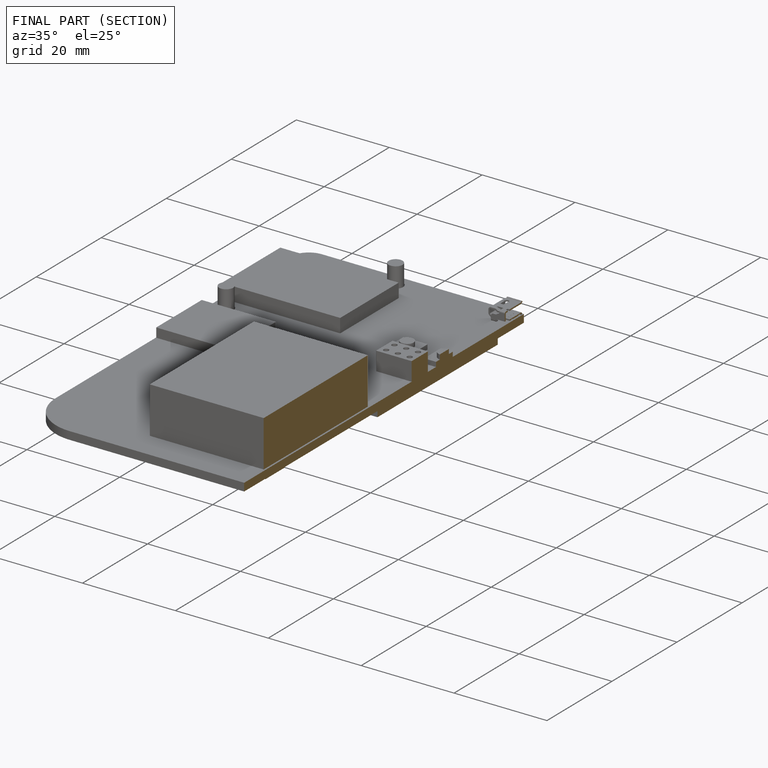
[diagram: finished part — half-section view (interior)]
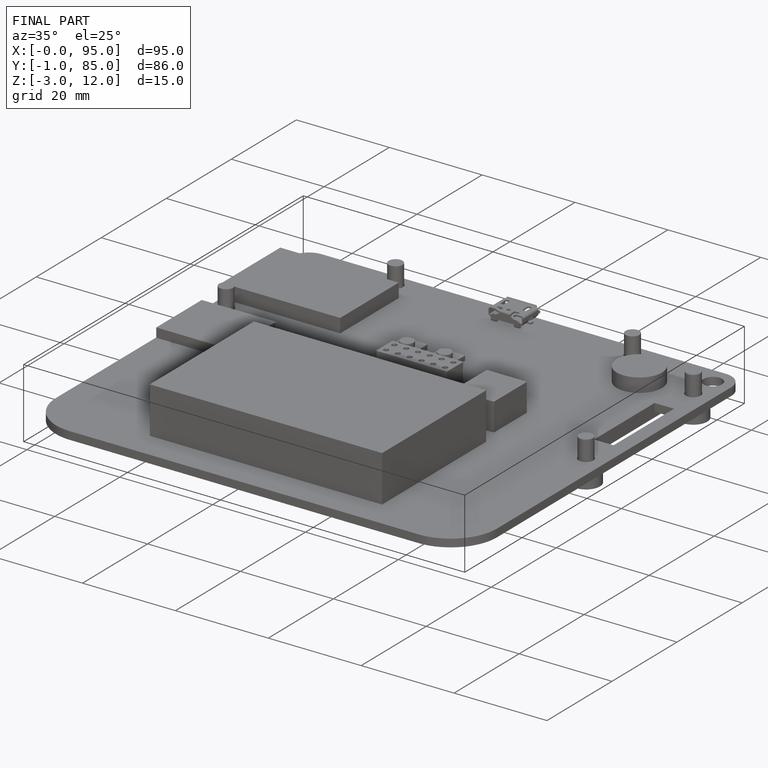
[diagram: finished part — iso view with bounding-box wireframe]
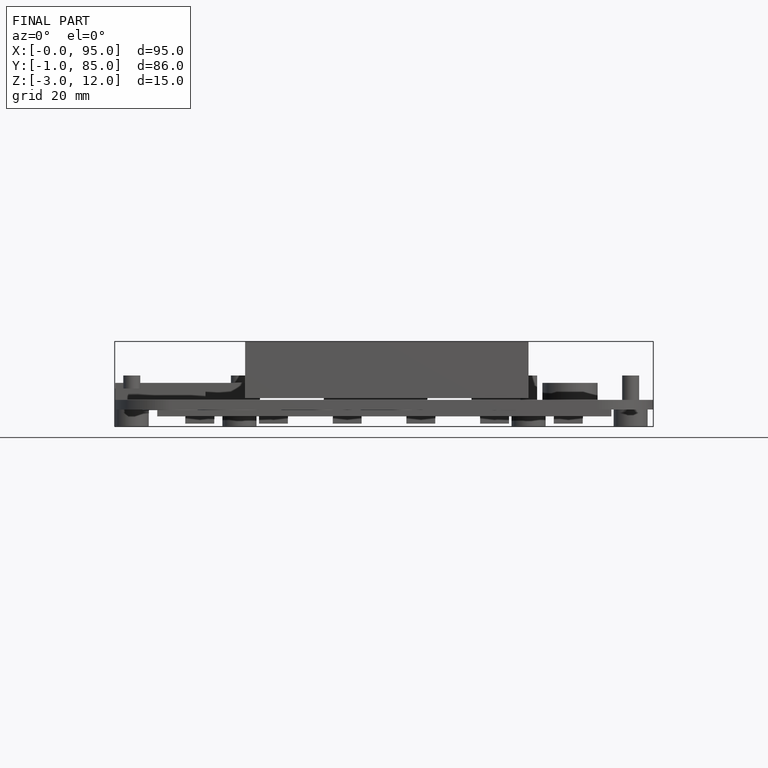
[diagram: finished part — front view with bounding-box wireframe]
